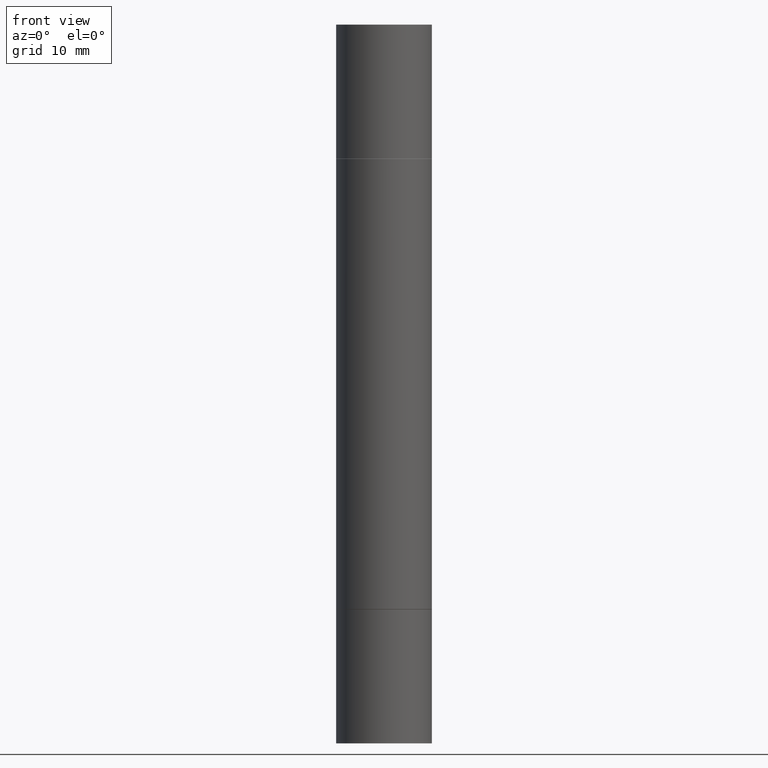
[diagram: clean part render]
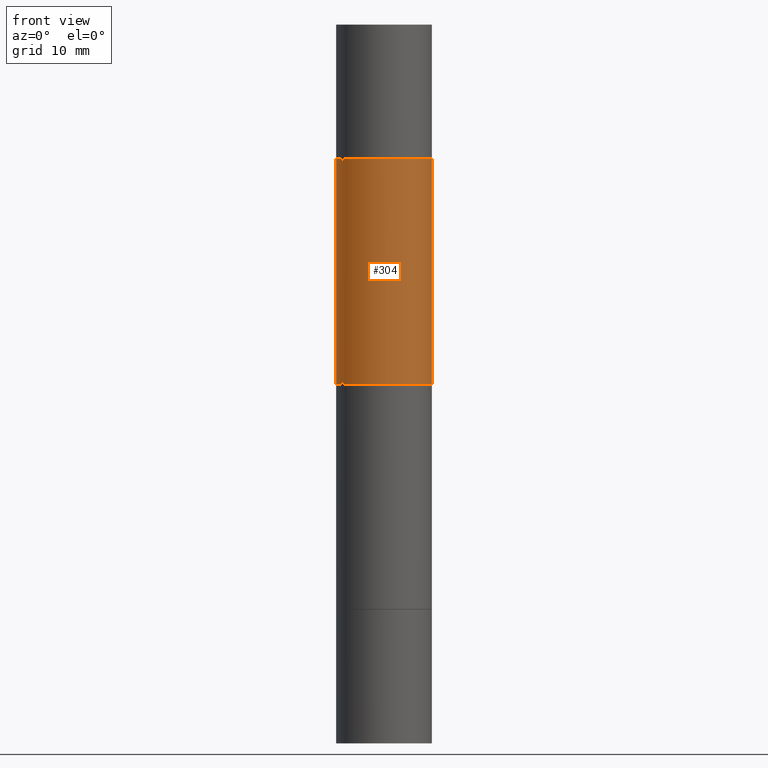
[diagram: same view with one face highlighted and labeled with its STEP entity id]
A machine part, front view. The second image highlights one B-rep face of the part: STEP entity #304.
In plain terms, the highlighted cylindrical surface (partial cylindrical patch) has radius 5 mm, axis along (-0, -0, -1).
Its self-contained STEP definition (entity closure, byte-faithful):
#7 = DIRECTION ( 'NONE',  ( -2.445468806185136877E-29, -3.492890411551753071E-15, -1.000000000000000000 ) ) ;
#10 = AXIS2_PLACEMENT_3D ( 'NONE', #324, #522, #373 ) ;
#11 = ORIENTED_EDGE ( 'NONE', *, *, #54, .F. ) ;
#54 = EDGE_CURVE ( 'NONE', #374, #82, #486, .T. ) ;
#63 = CARTESIAN_POINT ( 'NONE',  ( -0.1968500000000000250, -5.762046994505618475E-16, -0.5521999999999996911 ) ) ;
#81 = CARTESIAN_POINT ( 'NONE',  ( 3.610490145451734531E-29, -5.154823048668018475E-15, -1.476399999999999491 ) ) ;
#82 = VERTEX_POINT ( 'NONE', #645 ) ;
#98 = CARTESIAN_POINT ( 'NONE',  ( -0.1968499999999998307, -2.190269358628626559E-15, -1.476399999999999491 ) ) ;
#161 = CARTESIAN_POINT ( 'NONE',  ( 0.1968499999999998307, -1.168632265538556411E-14, -2.952799999999998981 ) ) ;
#171 = ORIENTED_EDGE ( 'NONE', *, *, #438, .F. ) ;
#182 = CYLINDRICAL_SURFACE ( 'NONE', #10, 0.1968499999999998307 ) ;
#198 = VERTEX_POINT ( 'NONE', #98 ) ;
#238 = DIRECTION ( 'NONE',  ( 2.445468806185136597E-29, 3.492890411551752677E-15, 1.000000000000000000 ) ) ;
#268 = ORIENTED_EDGE ( 'NONE', *, *, #553, .F. ) ;
#286 = LINE ( 'NONE', #320, #330 ) ;
#291 = DIRECTION ( 'NONE',  ( -0.000000000000000000, -3.492185875197449130E-15, -1.000000000000000000 ) ) ;
#304 = ADVANCED_FACE ( 'NONE', ( #524 ), #182, .T. ) ;
#320 = CARTESIAN_POINT ( 'NONE',  ( -0.1968499999999998307, -8.961237421421701017E-15, -2.952799999999998981 ) ) ;
#324 = CARTESIAN_POINT ( 'NONE',  ( 0.000000000000000000, -1.031172645228302408E-14, -2.952799999999998981 ) ) ;
#325 = ORIENTED_EDGE ( 'NONE', *, *, #425, .T. ) ;
#330 = VECTOR ( 'NONE', #472, 39.37007874015748143 ) ;
#373 = DIRECTION ( 'NONE',  ( 1.000000000000000000, -6.982962677686264344E-15, 0.000000000000000000 ) ) ;
#374 = VERTEX_POINT ( 'NONE', #63 ) ;
#425 = EDGE_CURVE ( 'NONE', #374, #198, #286, .T. ) ;
#437 = EDGE_LOOP ( 'NONE', ( #11, #325, #268, #171 ) ) ;
#438 = EDGE_CURVE ( 'NONE', #82, #503, #674, .T. ) ;
#472 = DIRECTION ( 'NONE',  ( -2.445468806185136877E-29, -3.492890411551753071E-15, -1.000000000000000000 ) ) ;
#486 = CIRCLE ( 'NONE', #603, 0.1968500000000000250 ) ;
#496 = CARTESIAN_POINT ( 'NONE',  ( 5.870592416128037625E-29, -1.926693730311889446E-15, -0.5521999999999996911 ) ) ;
#503 = VERTEX_POINT ( 'NONE', #546 ) ;
#522 = DIRECTION ( 'NONE',  ( -2.445468806185136597E-29, -3.492890411551752677E-15, -1.000000000000000000 ) ) ;
#524 = FACE_OUTER_BOUND ( 'NONE', #437, .T. ) ;
#538 = DIRECTION ( 'NONE',  ( 1.000000000000000000, -6.982962677686267499E-15, 0.000000000000000000 ) ) ;
#546 = CARTESIAN_POINT ( 'NONE',  ( 0.1968499999999998307, -4.915354592592491624E-15, -1.476399999999999491 ) ) ;
#553 = EDGE_CURVE ( 'NONE', #503, #198, #666, .T. ) ;
#603 = AXIS2_PLACEMENT_3D ( 'NONE', #496, #238, #538 ) ;
#611 = DIRECTION ( 'NONE',  ( 0.000000000000000000, 1.000000000000000000, -4.163344669033678790E-15 ) ) ;
#637 = AXIS2_PLACEMENT_3D ( 'NONE', #81, #291, #611 ) ;
#645 = CARTESIAN_POINT ( 'NONE',  ( 0.1968500000000000250, -3.301289933414429871E-15, -0.5521999999999996911 ) ) ;
#666 = CIRCLE ( 'NONE', #637, 0.1968499999999998307 ) ;
#674 = LINE ( 'NONE', #161, #678 ) ;
#678 = VECTOR ( 'NONE', #7, 39.37007874015748143 ) ;